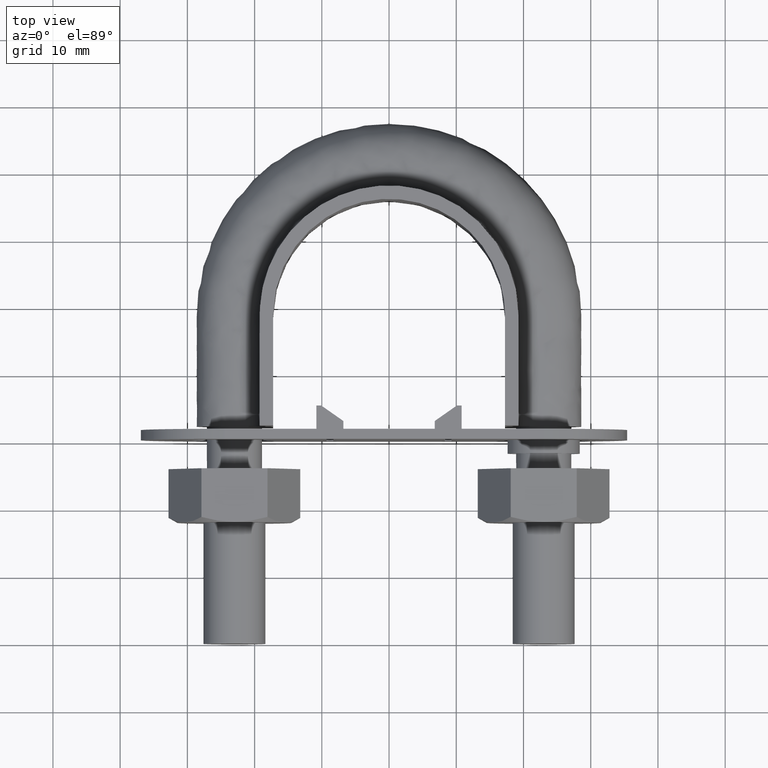
[diagram: clean part render]
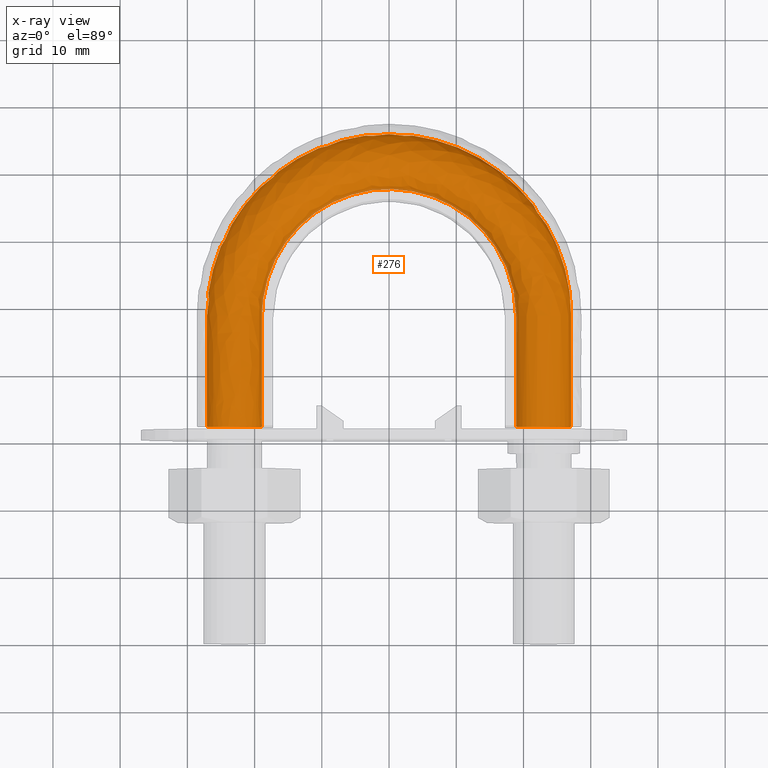
[diagram: x-ray — body ghosted, one internal face saturated and labeled with its STEP entity id]
A machine part, top view, then the same camera in x-ray: the body is ghosted and one INTERNAL B-rep face — a face not visible from any outside direction — is saturated and labeled: STEP entity #276.
In plain terms, the highlighted face is a freeform B-spline surface patch.
Its self-contained STEP definition (entity closure, byte-faithful):
#276 = ADVANCED_FACE( '', ( #401, #402 ), #403, .T. );
#401 = FACE_OUTER_BOUND( '', #1330, .T. );
#402 = FACE_OUTER_BOUND( '', #1331, .T. );
#403 = B_SPLINE_SURFACE_WITH_KNOTS( '', 3, 3, ( ( #1332, #1333, #1334, #1335, #1336, #1337, #1338, #1339, #1340, #1341, #1342, #1343, #1344, #1345, #1346 ), ( #1347, #1348, #1349, #1350, #1351, #1352, #1353, #1354, #1355, #1356, #1357, #1358, #1359, #1360, #1361 ), ( #1362, #1363, #1364, #1365, #1366, #1367, #1368, #1369, #1370, #1371, #1372, #1373, #1374, #1375, #1376 ), ( #1377, #1378, #1379, #1380, #1381, #1382, #1383, #1384, #1385, #1386, #1387, #1388, #1389, #1390, #1391 ), ( #1392, #1393, #1394, #1395, #1396, #1397, #1398, #1399, #1400, #1401, #1402, #1403, #1404, #1405, #1406 ), ( #1407, #1408, #1409, #1410, #1411, #1412, #1413, #1414, #1415, #1416, #1417, #1418, #1419, #1420, #1421 ), ( #1422, #1423, #1424, #1425, #1426, #1427, #1428, #1429, #1430, #1431, #1432, #1433, #1434, #1435, #1436 ), ( #1437, #1438, #1439, #1440, #1441, #1442, #1443, #1444, #1445, #1446, #1447, #1448, #1449, #1450, #1451 ), ( #1452, #1453, #1454, #1455, #1456, #1457, #1458, #1459, #1460, #1461, #1462, #1463, #1464, #1465, #1466 ), ( #1467, #1468, #1469, #1470, #1471, #1472, #1473, #1474, #1475, #1476, #1477, #1478, #1479, #1480, #1481 ) ), .UNSPECIFIED., .T., .F., .F., ( 2, 1, 1, 1, 1, 1, 1, 1, 1, 1, 1, 2 ), ( 4, 3, 1, 1, 1, 1, 1, 3, 4 ), ( -0.285714285714286, -0.142857142857143, 0.000000000000000, 0.142857142857143, 0.285714285714286, 0.428571428571429, 0.571428571428571, 0.714285714285714, 0.857142857142857, 1.00000000000000, 1.14285714285714, 1.28571428571429 ), ( 0.000000000000000, 1.00000000000000, 2.00000000000000, 3.00000000000000, 4.00000000000000, 5.00000000000000, 6.00000000000000, 7.00000000000000, 8.00000000000000 ), .UNSPECIFIED. );
#1330 = EDGE_LOOP( '', ( #1784, #1785, #1786, #1787, #1788, #1789, #1790 ) );
#1331 = EDGE_LOOP( '', ( #1791, #1792, #1793, #1794, #1795, #1796, #1797 ) );
#1332 = CARTESIAN_POINT( '', ( 20.0768231851220, 29.6500000000000, -3.66554778583225 ) );
#1333 = CARTESIAN_POINT( '', ( 20.0768231851220, 36.0166666666667, -3.66554778583225 ) );
#1334 = CARTESIAN_POINT( '', ( 20.0768231851220, 42.3833333333333, -3.66554778583225 ) );
#1335 = CARTESIAN_POINT( '', ( 20.0768231851220, 48.7500000000000, -3.66554778583225 ) );
#1336 = CARTESIAN_POINT( '', ( 20.0768231851220, 52.2403502497146, -3.66554778583225 ) );
#1337 = CARTESIAN_POINT( '', ( 18.1998096206461, 59.2633605312745, -3.66554778583225 ) );
#1338 = CARTESIAN_POINT( '', ( 10.5076649836800, 66.9481823213334, -3.66554778583225 ) );
#1339 = CARTESIAN_POINT( '', ( 1.46151384414271E-014, 69.7661436170163, -3.66554778583225 ) );
#1340 = CARTESIAN_POINT( '', ( -10.5076649836799, 66.9481823213333, -3.66554778583225 ) );
#1341 = CARTESIAN_POINT( '', ( -18.1998096206461, 59.2633605312745, -3.66554778583225 ) );
#1342 = CARTESIAN_POINT( '', ( -20.0768231851220, 52.2403502497146, -3.66554778583225 ) );
#1343 = CARTESIAN_POINT( '', ( -20.0768231851220, 48.7500000000000, -3.66554778583225 ) );
#1344 = CARTESIAN_POINT( '', ( -20.0768231851220, 42.3833333333333, -3.66554778583225 ) );
#1345 = CARTESIAN_POINT( '', ( -20.0768231851220, 36.0166666666667, -3.66554778583225 ) );
#1346 = CARTESIAN_POINT( '', ( -20.0768231851220, 29.6500000000000, -3.66554778583225 ) );
#1347 = CARTESIAN_POINT( '', ( 18.3115884074390, 29.6500000000000, 0.000000000000000 ) );
#1348 = CARTESIAN_POINT( '', ( 18.3115884074390, 36.0166666666667, 0.000000000000000 ) );
#1349 = CARTESIAN_POINT( '', ( 18.3115884074390, 42.3833333333333, 0.000000000000000 ) );
#1350 = CARTESIAN_POINT( '', ( 18.3115884074390, 48.7500000000000, 0.000000000000000 ) );
#1351 = CARTESIAN_POINT( '', ( 18.3115884074390, 51.9250214276269, 0.000000000000000 ) );
#1352 = CARTESIAN_POINT( '', ( 16.5996094000564, 58.3429239046494, 0.000000000000000 ) );
#1353 = CARTESIAN_POINT( '', ( 9.58378895556520, 65.3469994146037, 0.000000000000000 ) );
#1354 = CARTESIAN_POINT( '', ( 1.74246878037363E-014, 67.9188829038567, 0.000000000000000 ) );
#1355 = CARTESIAN_POINT( '', ( -9.58378895556517, 65.3469994146037, 0.000000000000000 ) );
#1356 = CARTESIAN_POINT( '', ( -16.5996094000563, 58.3429239046494, 0.000000000000000 ) );
#1357 = CARTESIAN_POINT( '', ( -18.3115884074390, 51.9250214276269, 0.000000000000000 ) );
#1358 = CARTESIAN_POINT( '', ( -18.3115884074390, 48.7500000000000, 0.000000000000000 ) );
#1359 = CARTESIAN_POINT( '', ( -18.3115884074390, 42.3833333333333, 0.000000000000000 ) );
#1360 = CARTESIAN_POINT( '', ( -18.3115884074390, 36.0166666666667, 0.000000000000000 ) );
#1361 = CARTESIAN_POINT( '', ( -18.3115884074390, 29.6500000000000, 0.000000000000000 ) );
#1362 = CARTESIAN_POINT( '', ( 20.0768231851220, 29.6500000000000, 3.66554778583225 ) );
#1363 = CARTESIAN_POINT( '', ( 20.0768231851220, 36.0166666666667, 3.66554778583225 ) );
#1364 = CARTESIAN_POINT( '', ( 20.0768231851220, 42.3833333333333, 3.66554778583225 ) );
#1365 = CARTESIAN_POINT( '', ( 20.0768231851220, 48.7500000000000, 3.66554778583225 ) );
#1366 = CARTESIAN_POINT( '', ( 20.0768231851220, 52.2403502497146, 3.66554778583225 ) );
#1367 = CARTESIAN_POINT( '', ( 18.1998096206461, 59.2633605312745, 3.66554778583225 ) );
#1368 = CARTESIAN_POINT( '', ( 10.5076649836800, 66.9481823213334, 3.66554778583225 ) );
#1369 = CARTESIAN_POINT( '', ( 1.98193088693575E-014, 69.7661436170163, 3.66554778583225 ) );
#1370 = CARTESIAN_POINT( '', ( -10.5076649836799, 66.9481823213333, 3.66554778583225 ) );
#1371 = CARTESIAN_POINT( '', ( -18.1998096206461, 59.2633605312745, 3.66554778583225 ) );
#1372 = CARTESIAN_POINT( '', ( -20.0768231851220, 52.2403502497146, 3.66554778583225 ) );
#1373 = CARTESIAN_POINT( '', ( -20.0768231851220, 48.7500000000000, 3.66554778583225 ) );
#1374 = CARTESIAN_POINT( '', ( -20.0768231851220, 42.3833333333333, 3.66554778583225 ) );
#1375 = CARTESIAN_POINT( '', ( -20.0768231851220, 36.0166666666667, 3.66554778583225 ) );
#1376 = CARTESIAN_POINT( '', ( -20.0768231851220, 29.6500000000000, 3.66554778583225 ) );
#1377 = CARTESIAN_POINT( '', ( 24.0432697263483, 29.6500000000000, 4.57086332538454 ) );
#1378 = CARTESIAN_POINT( '', ( 24.0432697263483, 36.0166666666667, 4.57086332538454 ) );
#1379 = CARTESIAN_POINT( '', ( 24.0432697263483, 42.3833333333333, 4.57086332538454 ) );
#1380 = CARTESIAN_POINT( '', ( 24.0432697263483, 48.7500000000000, 4.57086332538454 ) );
#1381 = CARTESIAN_POINT( '', ( 24.0432697263483, 52.9488876814098, 4.57086332538454 ) );
#1382 = CARTESIAN_POINT( '', ( 21.7954268781754, 61.3315628578155, 4.57086332538453 ) );
#1383 = CARTESIAN_POINT( '', ( 12.5835955752174, 70.5460076545759, 4.57086332538453 ) );
#1384 = CARTESIAN_POINT( '', ( 2.07612940956725E-014, 73.9169007622345, 4.57086332538454 ) );
#1385 = CARTESIAN_POINT( '', ( -12.5835955752173, 70.5460076545759, 4.57086332538453 ) );
#1386 = CARTESIAN_POINT( '', ( -21.7954268781754, 61.3315628578155, 4.57086332538453 ) );
#1387 = CARTESIAN_POINT( '', ( -24.0432697263483, 52.9488876814098, 4.57086332538454 ) );
#1388 = CARTESIAN_POINT( '', ( -24.0432697263483, 48.7500000000000, 4.57086332538454 ) );
#1389 = CARTESIAN_POINT( '', ( -24.0432697263483, 42.3833333333333, 4.57086332538454 ) );
#1390 = CARTESIAN_POINT( '', ( -24.0432697263483, 36.0166666666667, 4.57086332538454 ) );
#1391 = CARTESIAN_POINT( '', ( -24.0432697263483, 29.6500000000000, 4.57086332538454 ) );
#1392 = CARTESIAN_POINT( '', ( 27.2241128848103, 29.6500000000000, 2.03422555230246 ) );
#1393 = CARTESIAN_POINT( '', ( 27.2241128848103, 36.0166666666667, 2.03422555230246 ) );
#1394 = CARTESIAN_POINT( '', ( 27.2241128848103, 42.3833333333333, 2.03422555230246 ) );
#1395 = CARTESIAN_POINT( '', ( 27.2241128848103, 48.7500000000000, 2.03422555230246 ) );
#1396 = CARTESIAN_POINT( '', ( 27.2241128848103, 53.5170905851164, 2.03422555230246 ) );
#1397 = CARTESIAN_POINT( '', ( 24.6788880404992, 62.9901323487481, 2.03422555230246 ) );
#1398 = CARTESIAN_POINT( '', ( 14.2483626534829, 73.4312395561378, 2.03422555230246 ) );
#1399 = CARTESIAN_POINT( '', ( 1.85668373271168E-014, 77.2455495491465, 2.03422555230247 ) );
#1400 = CARTESIAN_POINT( '', ( -14.2483626534829, 73.4312395561377, 2.03422555230246 ) );
#1401 = CARTESIAN_POINT( '', ( -24.6788880404992, 62.9901323487481, 2.03422555230246 ) );
#1402 = CARTESIAN_POINT( '', ( -27.2241128848102, 53.5170905851164, 2.03422555230246 ) );
#1403 = CARTESIAN_POINT( '', ( -27.2241128848102, 48.7500000000000, 2.03422555230246 ) );
#1404 = CARTESIAN_POINT( '', ( -27.2241128848102, 42.3833333333333, 2.03422555230246 ) );
#1405 = CARTESIAN_POINT( '', ( -27.2241128848102, 36.0166666666667, 2.03422555230246 ) );
#1406 = CARTESIAN_POINT( '', ( -27.2241128848102, 29.6500000000000, 2.03422555230246 ) );
#1407 = CARTESIAN_POINT( '', ( 27.2241128848103, 29.6500000000000, -2.03422555230246 ) );
#1408 = CARTESIAN_POINT( '', ( 27.2241128848103, 36.0166666666667, -2.03422555230246 ) );
#1409 = CARTESIAN_POINT( '', ( 27.2241128848103, 42.3833333333333, -2.03422555230246 ) );
#1410 = CARTESIAN_POINT( '', ( 27.2241128848103, 48.7500000000000, -2.03422555230246 ) );
#1411 = CARTESIAN_POINT( '', ( 27.2241128848103, 53.5170905851164, -2.03422555230246 ) );
#1412 = CARTESIAN_POINT( '', ( 24.6788880404993, 62.9901323487481, -2.03422555230246 ) );
#1413 = CARTESIAN_POINT( '', ( 14.2483626534829, 73.4312395561378, -2.03422555230246 ) );
#1414 = CARTESIAN_POINT( '', ( 1.59647521131516E-014, 77.2455495491465, -2.03422555230247 ) );
#1415 = CARTESIAN_POINT( '', ( -14.2483626534829, 73.4312395561377, -2.03422555230246 ) );
#1416 = CARTESIAN_POINT( '', ( -24.6788880404992, 62.9901323487481, -2.03422555230246 ) );
#1417 = CARTESIAN_POINT( '', ( -27.2241128848102, 53.5170905851164, -2.03422555230246 ) );
#1418 = CARTESIAN_POINT( '', ( -27.2241128848102, 48.7500000000000, -2.03422555230246 ) );
#1419 = CARTESIAN_POINT( '', ( -27.2241128848102, 42.3833333333333, -2.03422555230246 ) );
#1420 = CARTESIAN_POINT( '', ( -27.2241128848102, 36.0166666666667, -2.03422555230246 ) );
#1421 = CARTESIAN_POINT( '', ( -27.2241128848102, 29.6500000000000, -2.03422555230246 ) );
#1422 = CARTESIAN_POINT( '', ( 24.0432697263483, 29.6500000000000, -4.57086332538454 ) );
#1423 = CARTESIAN_POINT( '', ( 24.0432697263483, 36.0166666666667, -4.57086332538454 ) );
#1424 = CARTESIAN_POINT( '', ( 24.0432697263483, 42.3833333333333, -4.57086332538454 ) );
#1425 = CARTESIAN_POINT( '', ( 24.0432697263483, 48.7500000000000, -4.57086332538454 ) );
#1426 = CARTESIAN_POINT( '', ( 24.0432697263483, 52.9488876814098, -4.57086332538454 ) );
#1427 = CARTESIAN_POINT( '', ( 21.7954268781754, 61.3315628578155, -4.57086332538454 ) );
#1428 = CARTESIAN_POINT( '', ( 12.5835955752174, 70.5460076545759, -4.57086332538453 ) );
#1429 = CARTESIAN_POINT( '', ( 1.29550384537769E-014, 73.9169007622344, -4.57086332538454 ) );
#1430 = CARTESIAN_POINT( '', ( -12.5835955752174, 70.5460076545759, -4.57086332538453 ) );
#1431 = CARTESIAN_POINT( '', ( -21.7954268781754, 61.3315628578155, -4.57086332538454 ) );
#1432 = CARTESIAN_POINT( '', ( -24.0432697263483, 52.9488876814098, -4.57086332538454 ) );
#1433 = CARTESIAN_POINT( '', ( -24.0432697263483, 48.7500000000000, -4.57086332538454 ) );
#1434 = CARTESIAN_POINT( '', ( -24.0432697263483, 42.3833333333333, -4.57086332538454 ) );
#1435 = CARTESIAN_POINT( '', ( -24.0432697263483, 36.0166666666667, -4.57086332538454 ) );
#1436 = CARTESIAN_POINT( '', ( -24.0432697263483, 29.6500000000000, -4.57086332538454 ) );
#1437 = CARTESIAN_POINT( '', ( 20.0768231851220, 29.6500000000000, -3.66554778583225 ) );
#1438 = CARTESIAN_POINT( '', ( 20.0768231851220, 36.0166666666667, -3.66554778583225 ) );
#1439 = CARTESIAN_POINT( '', ( 20.0768231851220, 42.3833333333333, -3.66554778583225 ) );
#1440 = CARTESIAN_POINT( '', ( 20.0768231851220, 48.7500000000000, -3.66554778583225 ) );
#1441 = CARTESIAN_POINT( '', ( 20.0768231851220, 52.2403502497146, -3.66554778583225 ) );
#1442 = CARTESIAN_POINT( '', ( 18.1998096206461, 59.2633605312745, -3.66554778583225 ) );
#1443 = CARTESIAN_POINT( '', ( 10.5076649836800, 66.9481823213334, -3.66554778583225 ) );
#1444 = CARTESIAN_POINT( '', ( 1.46151384414271E-014, 69.7661436170163, -3.66554778583225 ) );
#1445 = CARTESIAN_POINT( '', ( -10.5076649836799, 66.9481823213333, -3.66554778583225 ) );
#1446 = CARTESIAN_POINT( '', ( -18.1998096206461, 59.2633605312745, -3.66554778583225 ) );
#1447 = CARTESIAN_POINT( '', ( -20.0768231851220, 52.2403502497146, -3.66554778583225 ) );
#1448 = CARTESIAN_POINT( '', ( -20.0768231851220, 48.7500000000000, -3.66554778583225 ) );
#1449 = CARTESIAN_POINT( '', ( -20.0768231851220, 42.3833333333333, -3.66554778583225 ) );
#1450 = CARTESIAN_POINT( '', ( -20.0768231851220, 36.0166666666667, -3.66554778583225 ) );
#1451 = CARTESIAN_POINT( '', ( -20.0768231851220, 29.6500000000000, -3.66554778583225 ) );
#1452 = CARTESIAN_POINT( '', ( 18.3115884074390, 29.6500000000000, 0.000000000000000 ) );
#1453 = CARTESIAN_POINT( '', ( 18.3115884074390, 36.0166666666667, 0.000000000000000 ) );
#1454 = CARTESIAN_POINT( '', ( 18.3115884074390, 42.3833333333333, 0.000000000000000 ) );
#1455 = CARTESIAN_POINT( '', ( 18.3115884074390, 48.7500000000000, 0.000000000000000 ) );
#1456 = CARTESIAN_POINT( '', ( 18.3115884074390, 51.9250214276269, 0.000000000000000 ) );
#1457 = CARTESIAN_POINT( '', ( 16.5996094000564, 58.3429239046494, 0.000000000000000 ) );
#1458 = CARTESIAN_POINT( '', ( 9.58378895556520, 65.3469994146037, 0.000000000000000 ) );
#1459 = CARTESIAN_POINT( '', ( 1.74246878037363E-014, 67.9188829038567, 0.000000000000000 ) );
#1460 = CARTESIAN_POINT( '', ( -9.58378895556517, 65.3469994146037, 0.000000000000000 ) );
#1461 = CARTESIAN_POINT( '', ( -16.5996094000563, 58.3429239046494, 0.000000000000000 ) );
#1462 = CARTESIAN_POINT( '', ( -18.3115884074390, 51.9250214276269, 0.000000000000000 ) );
#1463 = CARTESIAN_POINT( '', ( -18.3115884074390, 48.7500000000000, 0.000000000000000 ) );
#1464 = CARTESIAN_POINT( '', ( -18.3115884074390, 42.3833333333333, 0.000000000000000 ) );
#1465 = CARTESIAN_POINT( '', ( -18.3115884074390, 36.0166666666667, 0.000000000000000 ) );
#1466 = CARTESIAN_POINT( '', ( -18.3115884074390, 29.6500000000000, 0.000000000000000 ) );
#1467 = CARTESIAN_POINT( '', ( 20.0768231851220, 29.6500000000000, 3.66554778583225 ) );
#1468 = CARTESIAN_POINT( '', ( 20.0768231851220, 36.0166666666667, 3.66554778583225 ) );
#1469 = CARTESIAN_POINT( '', ( 20.0768231851220, 42.3833333333333, 3.66554778583225 ) );
#1470 = CARTESIAN_POINT( '', ( 20.0768231851220, 48.7500000000000, 3.66554778583225 ) );
#1471 = CARTESIAN_POINT( '', ( 20.0768231851220, 52.2403502497146, 3.66554778583225 ) );
#1472 = CARTESIAN_POINT( '', ( 18.1998096206461, 59.2633605312745, 3.66554778583225 ) );
#1473 = CARTESIAN_POINT( '', ( 10.5076649836800, 66.9481823213334, 3.66554778583225 ) );
#1474 = CARTESIAN_POINT( '', ( 1.98193088693575E-014, 69.7661436170163, 3.66554778583225 ) );
#1475 = CARTESIAN_POINT( '', ( -10.5076649836799, 66.9481823213333, 3.66554778583225 ) );
#1476 = CARTESIAN_POINT( '', ( -18.1998096206461, 59.2633605312745, 3.66554778583225 ) );
#1477 = CARTESIAN_POINT( '', ( -20.0768231851220, 52.2403502497146, 3.66554778583225 ) );
#1478 = CARTESIAN_POINT( '', ( -20.0768231851220, 48.7500000000000, 3.66554778583225 ) );
#1479 = CARTESIAN_POINT( '', ( -20.0768231851220, 42.3833333333333, 3.66554778583225 ) );
#1480 = CARTESIAN_POINT( '', ( -20.0768231851220, 36.0166666666667, 3.66554778583225 ) );
#1481 = CARTESIAN_POINT( '', ( -20.0768231851220, 29.6500000000000, 3.66554778583225 ) );
#1784 = ORIENTED_EDGE( '', *, *, #2540, .T. );
#1785 = ORIENTED_EDGE( '', *, *, #2541, .T. );
#1786 = ORIENTED_EDGE( '', *, *, #2542, .T. );
#1787 = ORIENTED_EDGE( '', *, *, #2543, .T. );
#1788 = ORIENTED_EDGE( '', *, *, #2539, .T. );
#1789 = ORIENTED_EDGE( '', *, *, #2544, .T. );
#1790 = ORIENTED_EDGE( '', *, *, #2545, .T. );
#1791 = ORIENTED_EDGE( '', *, *, #2546, .T. );
#1792 = ORIENTED_EDGE( '', *, *, #2547, .F. );
#1793 = ORIENTED_EDGE( '', *, *, #2548, .F. );
#1794 = ORIENTED_EDGE( '', *, *, #2549, .F. );
#1795 = ORIENTED_EDGE( '', *, *, #2550, .F. );
#1796 = ORIENTED_EDGE( '', *, *, #2551, .F. );
#1797 = ORIENTED_EDGE( '', *, *, #2552, .F. );
#2539 = EDGE_CURVE( '', #2780, #2778, #2791, .T. );
#2540 = EDGE_CURVE( '', #2775, #2786, #2792, .T. );
#2541 = EDGE_CURVE( '', #2786, #2784, #2793, .T. );
#2542 = EDGE_CURVE( '', #2784, #2782, #2794, .T. );
#2543 = EDGE_CURVE( '', #2782, #2780, #2795, .T. );
#2544 = EDGE_CURVE( '', #2778, #2776, #2796, .T. );
#2545 = EDGE_CURVE( '', #2776, #2775, #2797, .T. );
#2546 = EDGE_CURVE( '', #2798, #2799, #2800, .T. );
#2547 = EDGE_CURVE( '', #2801, #2799, #2802, .T. );
#2548 = EDGE_CURVE( '', #2803, #2801, #2804, .T. );
#2549 = EDGE_CURVE( '', #2805, #2803, #2806, .T. );
#2550 = EDGE_CURVE( '', #2807, #2805, #2808, .T. );
#2551 = EDGE_CURVE( '', #2809, #2807, #2810, .T. );
#2552 = EDGE_CURVE( '', #2798, #2809, #2811, .T. );
#2775 = VERTEX_POINT( '', #3311 );
#2776 = VERTEX_POINT( '', #3312 );
#2778 = VERTEX_POINT( '', #3314 );
#2780 = VERTEX_POINT( '', #3316 );
#2782 = VERTEX_POINT( '', #3318 );
#2784 = VERTEX_POINT( '', #3320 );
#2786 = VERTEX_POINT( '', #3322 );
#2791 = B_SPLINE_CURVE_WITH_KNOTS( '', 3, ( #3327, #3328, #3329, #3330 ), .UNSPECIFIED., .F., .F., ( 4, 4 ), ( 0.0146317467085371, 0.0182856759681440 ), .UNSPECIFIED. );
#2792 = B_SPLINE_CURVE_WITH_KNOTS( '', 3, ( #3331, #3332, #3333, #3334 ), .UNSPECIFIED., .F., .F., ( 4, 4 ), ( 5.55111512312578E-017, 0.00365969768494584 ), .UNSPECIFIED. );
#2793 = B_SPLINE_CURVE_WITH_KNOTS( '', 3, ( #3335, #3336, #3337, #3338 ), .UNSPECIFIED., .F., .F., ( 4, 4 ), ( 0.00365969768494584, 0.00731437302338641 ), .UNSPECIFIED. );
#2794 = B_SPLINE_CURVE_WITH_KNOTS( '', 3, ( #3339, #3340, #3341, #3342 ), .UNSPECIFIED., .F., .F., ( 4, 4 ), ( 0.00731437302338641, 0.0109748044148576 ), .UNSPECIFIED. );
#2795 = B_SPLINE_CURVE_WITH_KNOTS( '', 3, ( #3343, #3344, #3345, #3346 ), .UNSPECIFIED., .F., .F., ( 4, 4 ), ( 0.0109748044148576, 0.0146317467085371 ), .UNSPECIFIED. );
#2796 = B_SPLINE_CURVE_WITH_KNOTS( '', 3, ( #3347, #3348, #3349, #3350 ), .UNSPECIFIED., .F., .F., ( 4, 4 ), ( 0.0182856759681440, 0.0219456464543635 ), .UNSPECIFIED. );
#2797 = B_SPLINE_CURVE_WITH_KNOTS( '', 3, ( #3351, #3352, #3353, #3354 ), .UNSPECIFIED., .F., .F., ( 4, 4 ), ( 0.0219456464543635, 0.0255944202292314 ), .UNSPECIFIED. );
#2798 = VERTEX_POINT( '', #3355 );
#2799 = VERTEX_POINT( '', #3356 );
#2800 = B_SPLINE_CURVE_WITH_KNOTS( '', 3, ( #3357, #3358, #3359, #3360 ), .UNSPECIFIED., .F., .F., ( 4, 4 ), ( 2.73819213571524E-016, 0.00365969768494557 ), .UNSPECIFIED. );
#2801 = VERTEX_POINT( '', #3361 );
#2802 = B_SPLINE_CURVE_WITH_KNOTS( '', 3, ( #3362, #3363, #3364, #3365 ), .UNSPECIFIED., .F., .F., ( 4, 4 ), ( -0.285714285714286, -0.142857142857143 ), .UNSPECIFIED. );
#2803 = VERTEX_POINT( '', #3366 );
#2804 = B_SPLINE_CURVE_WITH_KNOTS( '', 3, ( #3367, #3368, #3369, #3370 ), .UNSPECIFIED., .F., .F., ( 4, 4 ), ( -0.428571428571429, -0.285714285714286 ), .UNSPECIFIED. );
#2805 = VERTEX_POINT( '', #3371 );
#2806 = B_SPLINE_CURVE_WITH_KNOTS( '', 3, ( #3372, #3373, #3374, #3375 ), .UNSPECIFIED., .F., .F., ( 4, 4 ), ( -0.571428571428571, -0.428571428571429 ), .UNSPECIFIED. );
#2807 = VERTEX_POINT( '', #3376 );
#2808 = B_SPLINE_CURVE_WITH_KNOTS( '', 3, ( #3377, #3378, #3379, #3380 ), .UNSPECIFIED., .F., .F., ( 4, 4 ), ( -0.714285714285714, -0.571428571428571 ), .UNSPECIFIED. );
#2809 = VERTEX_POINT( '', #3381 );
#2810 = B_SPLINE_CURVE_WITH_KNOTS( '', 3, ( #3382, #3383, #3384, #3385 ), .UNSPECIFIED., .F., .F., ( 4, 4 ), ( -0.857142857142857, -0.714285714285714 ), .UNSPECIFIED. );
#2811 = B_SPLINE_CURVE_WITH_KNOTS( '', 3, ( #3386, #3387, #3388, #3389 ), .UNSPECIFIED., .F., .F., ( 4, 4 ), ( -1.00000000000000, -0.857142857142857 ), .UNSPECIFIED. );
#3311 = CARTESIAN_POINT( '', ( -18.9000000000000, 32.3000000000000, 5.45788039772064E-014 ) );
#3312 = CARTESIAN_POINT( '', ( -20.4436918123972, 32.3000000000000, 3.20550907813328 ) );
#3314 = CARTESIAN_POINT( '', ( -23.9123358292208, 32.3000000000000, 3.99720443994550 ) );
#3316 = CARTESIAN_POINT( '', ( -26.6939723583999, 32.3000000000000, 1.77892333038209 ) );
#3318 = CARTESIAN_POINT( '', ( -26.6939723583911, 32.3000000000000, -1.77892333040036 ) );
#3320 = CARTESIAN_POINT( '', ( -23.9123358292208, 32.3000000000000, -3.99720443994549 ) );
#3322 = CARTESIAN_POINT( '', ( -20.4436918123793, 32.3000000000000, -3.20550907811900 ) );
#3327 = CARTESIAN_POINT( '', ( -26.6939723583999, 32.3000000000000, 1.77892333038210 ) );
#3328 = CARTESIAN_POINT( '', ( -26.1638318319895, 32.3000000000000, 2.87977147666323 ) );
#3329 = CARTESIAN_POINT( '', ( -25.1035507791689, 32.3000000000000, 3.72531740102388 ) );
#3330 = CARTESIAN_POINT( '', ( -23.9123358292208, 32.3000000000000, 3.99720443994549 ) );
#3331 = CARTESIAN_POINT( '', ( -18.9000000000000, 32.3000000000000, -4.52112305926455E-014 ) );
#3332 = CARTESIAN_POINT( '', ( -18.9000000000000, 32.3000000000000, -1.22184926194415 ) );
#3333 = CARTESIAN_POINT( '', ( -19.4884115925610, 32.3000000000000, -2.44369852388825 ) );
#3334 = CARTESIAN_POINT( '', ( -20.4436918123793, 32.3000000000000, -3.20550907811900 ) );
#3335 = CARTESIAN_POINT( '', ( -20.4436918123793, 32.3000000000000, -3.20550907811898 ) );
#3336 = CARTESIAN_POINT( '', ( -21.3989720321974, 32.3000000000000, -3.96731963234967 ) );
#3337 = CARTESIAN_POINT( '', ( -22.7211208792728, 32.3000000000000, -4.26909147886708 ) );
#3338 = CARTESIAN_POINT( '', ( -23.9123358292208, 32.3000000000000, -3.99720443994550 ) );
#3339 = CARTESIAN_POINT( '', ( -23.9123358292135, 32.3000000000000, -3.99720443994687 ) );
#3340 = CARTESIAN_POINT( '', ( -25.1035507791593, 32.3000000000000, -3.72531740102776 ) );
#3341 = CARTESIAN_POINT( '', ( -26.1638318319778, 32.3000000000000, -2.87977147667259 ) );
#3342 = CARTESIAN_POINT( '', ( -26.6939723583911, 32.3000000000000, -1.77892333040036 ) );
#3343 = CARTESIAN_POINT( '', ( -26.6939723583911, 32.3000000000000, -1.77892333040033 ) );
#3344 = CARTESIAN_POINT( '', ( -27.2241128848103, 32.3000000000000, -0.678075184115858 ) );
#3345 = CARTESIAN_POINT( '', ( -27.2241128848132, 32.3000000000000, 0.678075184094776 ) );
#3346 = CARTESIAN_POINT( '', ( -26.6939723583999, 32.3000000000000, 1.77892333038208 ) );
#3347 = CARTESIAN_POINT( '', ( -23.9123358292289, 32.3000000000000, 3.99720443994334 ) );
#3348 = CARTESIAN_POINT( '', ( -22.7211208792844, 32.3000000000000, 4.26909147886634 ) );
#3349 = CARTESIAN_POINT( '', ( -21.3989720322140, 32.3000000000000, 3.96731963235346 ) );
#3350 = CARTESIAN_POINT( '', ( -20.4436918123972, 32.3000000000000, 3.20550907813327 ) );
#3351 = CARTESIAN_POINT( '', ( -20.4436918123972, 32.3000000000000, 3.20550907813327 ) );
#3352 = CARTESIAN_POINT( '', ( -19.4884115925684, 32.3000000000000, 2.44369852390351 ) );
#3353 = CARTESIAN_POINT( '', ( -18.9000000000000, 32.3000000000000, 1.22184926195176 ) );
#3354 = CARTESIAN_POINT( '', ( -18.9000000000000, 32.3000000000000, 4.33680868994202E-016 ) );
#3355 = CARTESIAN_POINT( '', ( 18.9000000000000, 32.3000000000000, -2.78022518195713E-013 ) );
#3356 = CARTESIAN_POINT( '', ( 20.4436918123791, 32.3000000000000, 3.20550907811884 ) );
#3357 = CARTESIAN_POINT( '', ( 18.9000000000000, 32.3000000000000, 5.42101086242752E-016 ) );
#3358 = CARTESIAN_POINT( '', ( 18.9000000000000, 32.3000000000000, 1.22184926194404 ) );
#3359 = CARTESIAN_POINT( '', ( 19.4884115925609, 32.3000000000000, 2.44369852388808 ) );
#3360 = CARTESIAN_POINT( '', ( 20.4436918123791, 32.3000000000000, 3.20550907811884 ) );
#3361 = CARTESIAN_POINT( '', ( 23.9123358292209, 32.3000000000000, 3.99720443994548 ) );
#3362 = CARTESIAN_POINT( '', ( 23.9123358292208, 32.3000000000000, 3.99720443994549 ) );
#3363 = CARTESIAN_POINT( '', ( 22.7211208792728, 32.3000000000000, 4.26909147886711 ) );
#3364 = CARTESIAN_POINT( '', ( 21.3989720321973, 32.3000000000000, 3.96731963234966 ) );
#3365 = CARTESIAN_POINT( '', ( 20.4436918123791, 32.3000000000000, 3.20550907811884 ) );
#3366 = CARTESIAN_POINT( '', ( 26.6939723583999, 32.3000000000000, 1.77892333038209 ) );
#3367 = CARTESIAN_POINT( '', ( 26.6939723583999, 32.3000000000000, 1.77892333038209 ) );
#3368 = CARTESIAN_POINT( '', ( 26.1638318319895, 32.3000000000000, 2.87977147666321 ) );
#3369 = CARTESIAN_POINT( '', ( 25.1035507791689, 32.3000000000000, 3.72531740102386 ) );
#3370 = CARTESIAN_POINT( '', ( 23.9123358292209, 32.3000000000000, 3.99720443994548 ) );
#3371 = CARTESIAN_POINT( '', ( 26.6939723583999, 32.3000000000000, -1.77892333038200 ) );
#3372 = CARTESIAN_POINT( '', ( 26.6939723583999, 32.3000000000000, -1.77892333038196 ) );
#3373 = CARTESIAN_POINT( '', ( 27.2241128848103, 32.3000000000000, -0.678075184100773 ) );
#3374 = CARTESIAN_POINT( '', ( 27.2241128848103, 32.3000000000000, 0.678075184100900 ) );
#3375 = CARTESIAN_POINT( '', ( 26.6939723583999, 32.3000000000000, 1.77892333038209 ) );
#3376 = CARTESIAN_POINT( '', ( 23.9123358292213, 32.3000000000000, -3.99720443994538 ) );
#3377 = CARTESIAN_POINT( '', ( 23.9123358292213, 32.3000000000000, -3.99720443994538 ) );
#3378 = CARTESIAN_POINT( '', ( 25.1035507791692, 32.3000000000000, -3.72531740102365 ) );
#3379 = CARTESIAN_POINT( '', ( 26.1638318319897, 32.3000000000000, -2.87977147666303 ) );
#3380 = CARTESIAN_POINT( '', ( 26.6939723583999, 32.3000000000000, -1.77892333038199 ) );
#3381 = CARTESIAN_POINT( '', ( 20.4436918123816, 32.3000000000000, -3.20550907812084 ) );
#3382 = CARTESIAN_POINT( '', ( 20.4436918123817, 32.3000000000000, -3.20550907812093 ) );
#3383 = CARTESIAN_POINT( '', ( 21.3989720321998, 32.3000000000000, -3.96731963235029 ) );
#3384 = CARTESIAN_POINT( '', ( 22.7211208792742, 32.3000000000000, -4.26909147886695 ) );
#3385 = CARTESIAN_POINT( '', ( 23.9123358292213, 32.3000000000000, -3.99720443994538 ) );
#3386 = CARTESIAN_POINT( '', ( 18.9000000000000, 32.3000000000000, -1.10436833289373E-012 ) );
#3387 = CARTESIAN_POINT( '', ( 18.9000000000003, 32.3000000000000, -1.22184926194561 ) );
#3388 = CARTESIAN_POINT( '', ( 19.4884115925620, 32.3000000000000, -2.44369852389021 ) );
#3389 = CARTESIAN_POINT( '', ( 20.4436918123816, 32.3000000000000, -3.20550907812083 ) );